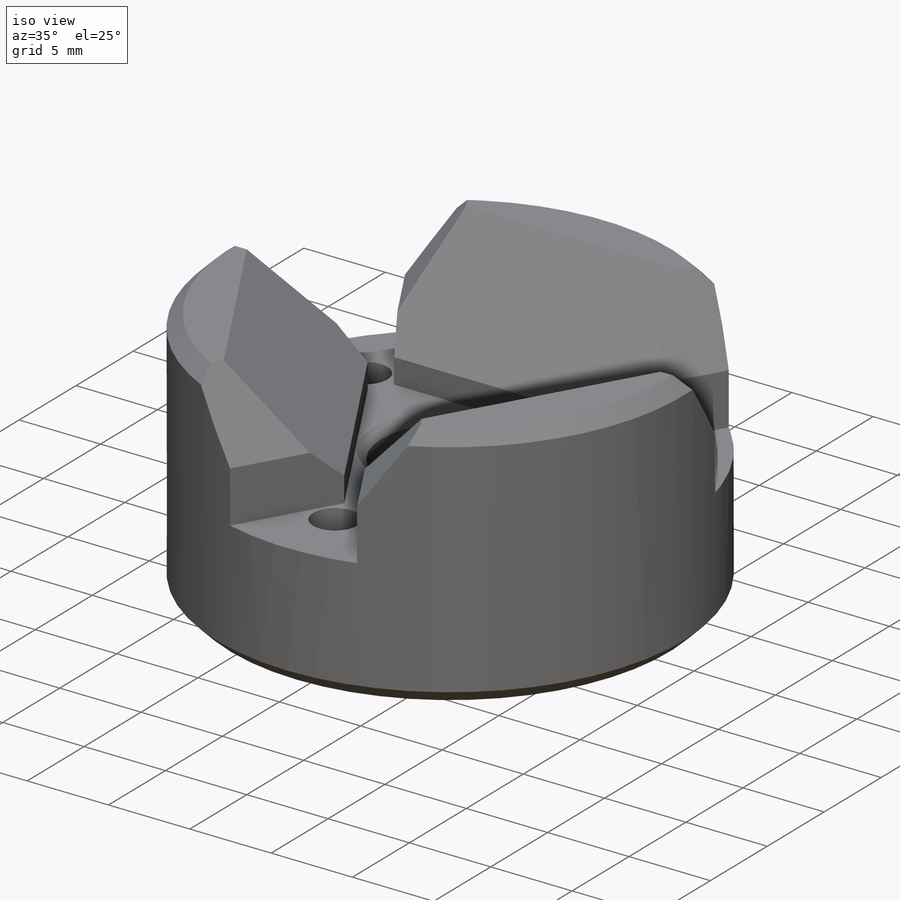
[diagram: iso view]
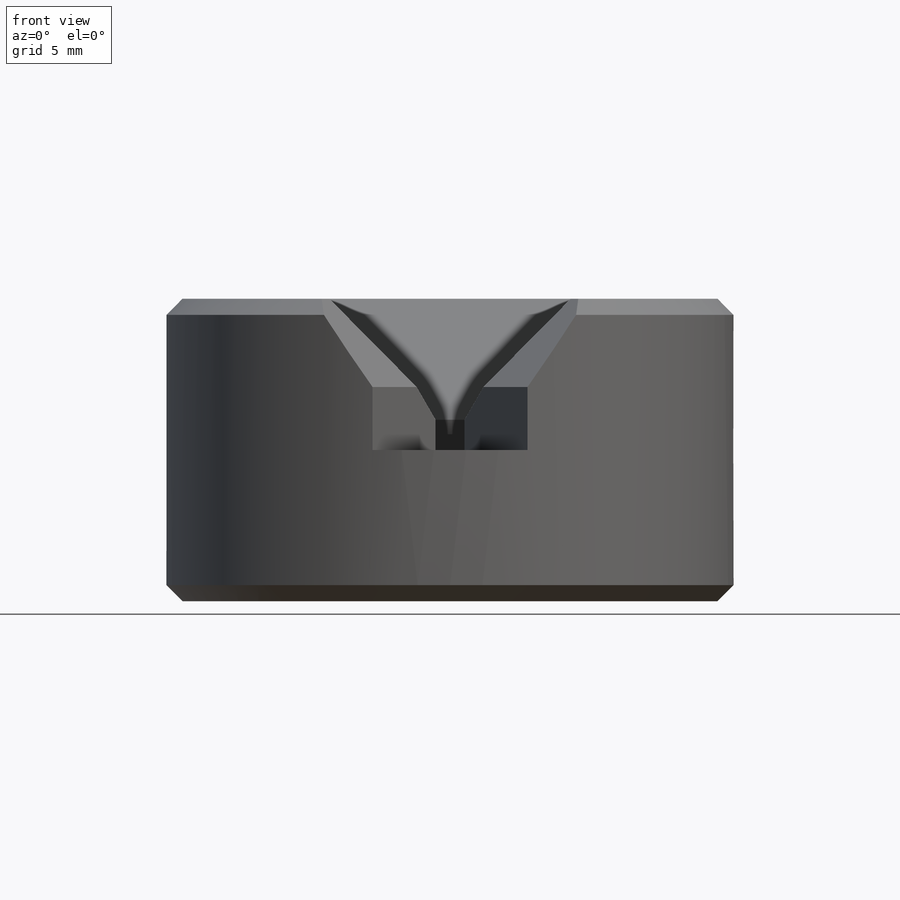
[diagram: front view]
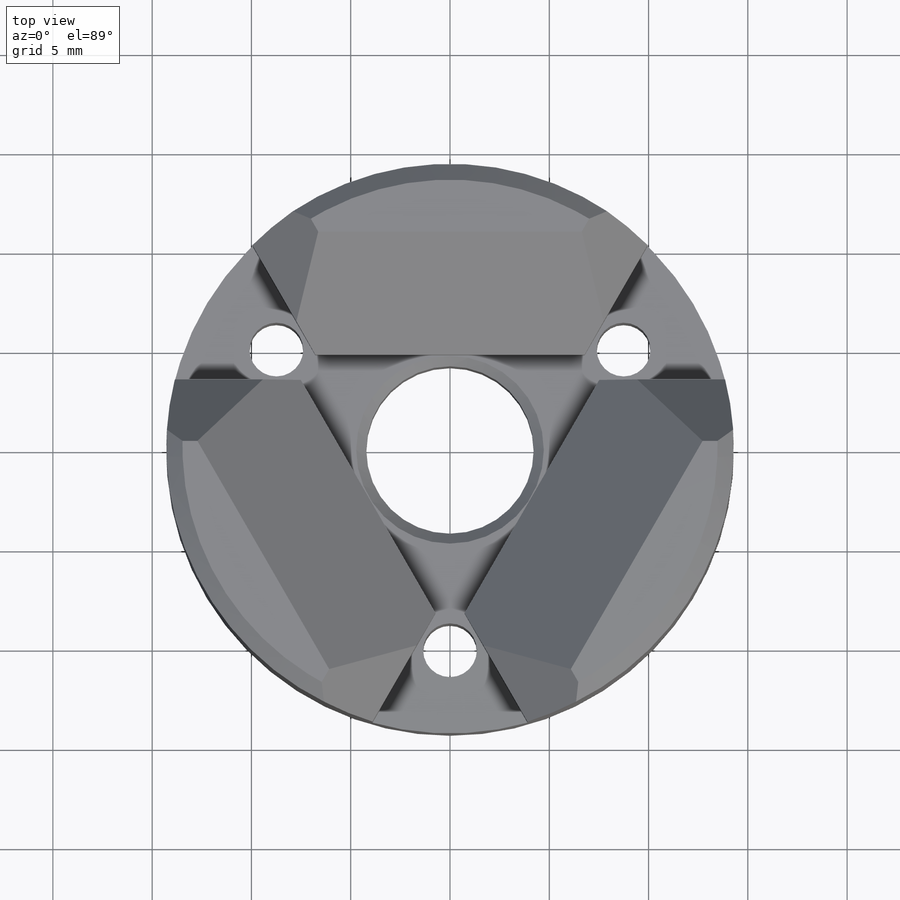
[diagram: top view]
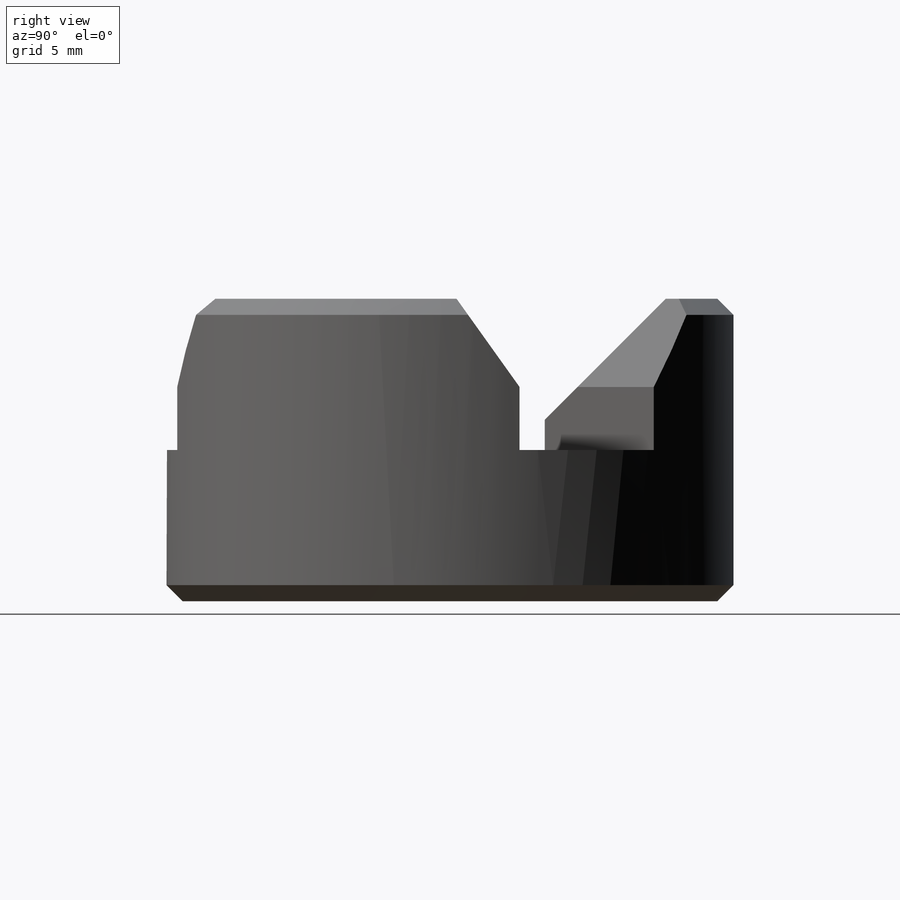
[diagram: right view]
SOLIDWORKS PART (.sldprt)
format: sldprt  version: not decoded by parser v0  size: 625,664 bytes
history: native  units: mm
features: sketch x11, plane x5, cut_extrude x3, pattern_circular x3, chamfer x3, hole x2, thread x2, material x1, extrude x1, cut_revolve x1 + 2 further entries (+9 scaffold rows collapsed)
feature tree (43):
  scaffold x9  (default folders/planes/origin — collapsed)
  material  "Material <not specified>"
  plane  "Plane X-Y"
  plane  "Plane X-Z"
  plane  "Plane Y-Z"
  "Axis - Y"
  "Axis - Z"
  sketch  "Sketch1"  dims[D1=28.575mm]
  extrude  "Extrude1"  Depth=15.24mm
  sketch  "Sketch2"  dims[D1=19.05mm]
  cut_extrude  "Cut-Extrude1"  Depth=7.62mm
  plane  "Plane1"  Offset=1.524mm
  plane  "Plane2"
  sketch  "Sketch3"  dims[D1=1.27mm]
  cut_extrude  "Cut-Extrude2"  [1 undecoded]
  pattern_circular  "CirPattern1"  Count=3 Angle=360deg
  sketch  "Sketch5"
  hole  "3/8-24 Tapped Hole1"  Diameter=8.4328mm Depth=15.24mm
  sketch  "Sketch9"
  sketch  "Sketch10"  dims[hole-wizard template sketch: 59 standard entries collapsed; hole parameters kept: c18.Thru Tap Drill Dia.=8.4328mm c18.Thru Tap Drill Depth=15.24mm]
  thread  "Hole Thread1"  Diameter=9.525mm  [1 undecoded]
  sketch  "Sketch6"  dims[c1.D1=0.762mm c1.D2=~6.683588mm c2.D2=45.0deg c2.D3=12.7mm]
  cut_revolve  "Cut-Revolve1"  Angle=360deg
  chamfer  "Chamfer1"  Distance=0.508mm Angle=45deg
  sketch  "Sketch11"  dims[D1=20.193mm D2=4.191mm]
  hole  "#6-32 Tapped Hole1"  [1 undecoded]
  sketch  "Sketch13"
  thread  "Hole Thread2"  Diameter=3.5052mm  [1 undecoded]
  sketch  "Sketch14"  dims[hole-wizard template sketch: 60 standard entries collapsed; hole parameters kept: c18.Thru Tap Drill Depth=15.24mm]
  chamfer  "Chamfer2"  Distance=0.381mm Angle=45deg
  pattern_circular  "CirPattern2"  Count=3 Angle=360deg
  sketch  "Sketch15"  dims[D1=3.175mm D2=3.175mm]
  cut_extrude  "Cut-Extrude3"  [1 undecoded]
  pattern_circular  "CirPattern3"  Count=3 Angle=360deg
  chamfer  "Chamfer3"  Distance=0.8128mm Angle=45deg
decode coverage: 20 of 26 modeling features carry decoded parameters; 2 rows unclassified (native names shown)
note: ~ marks probable driven/reference dimensions
note: 5 parameter values undecoded
summary: no parameter record found for 3 features
note: suppression state not decoded; provenance and decode notes live in map.json
